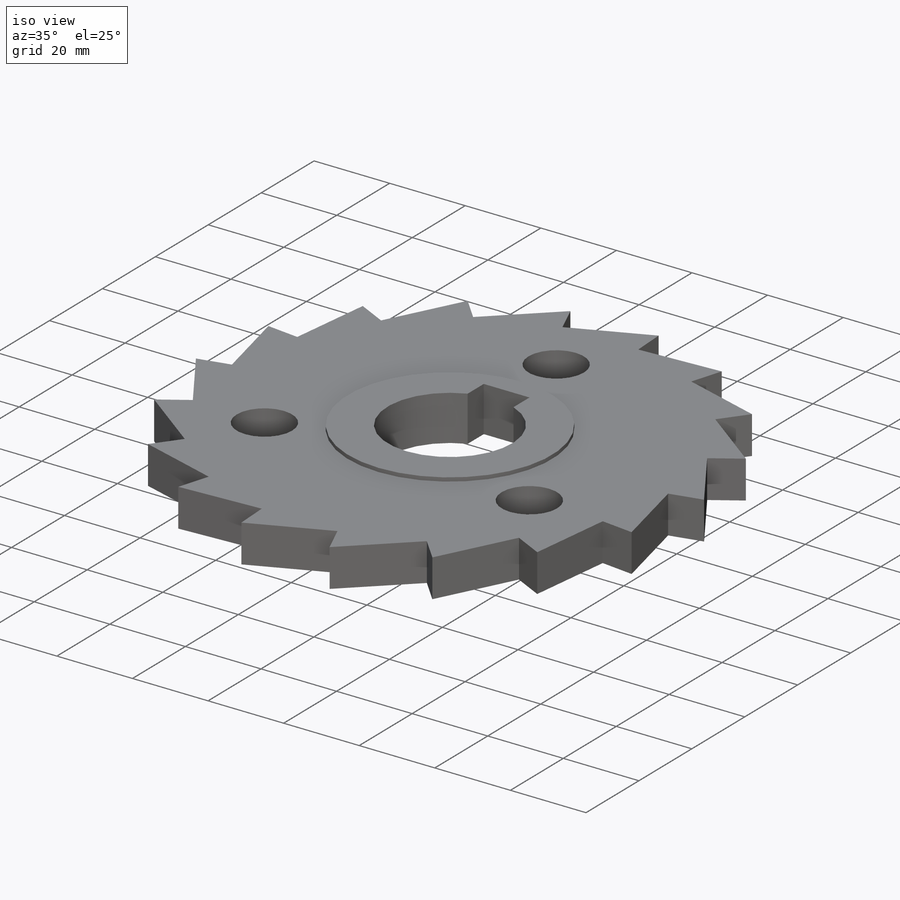
[diagram: iso view]
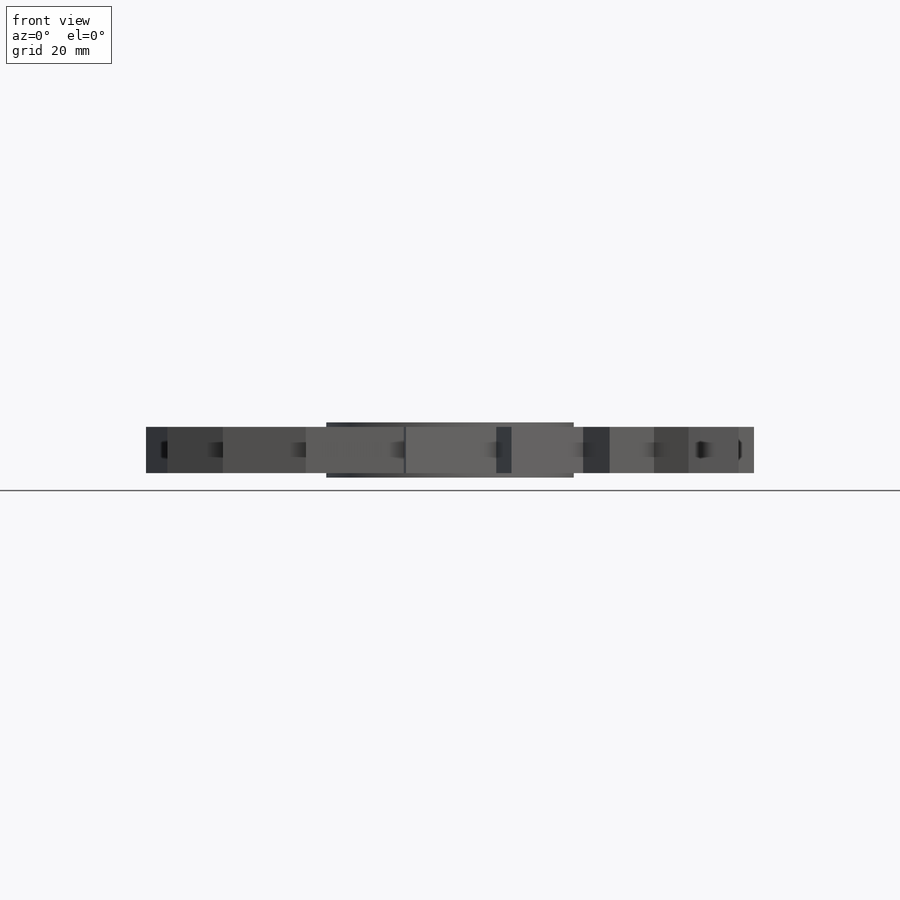
[diagram: front view]
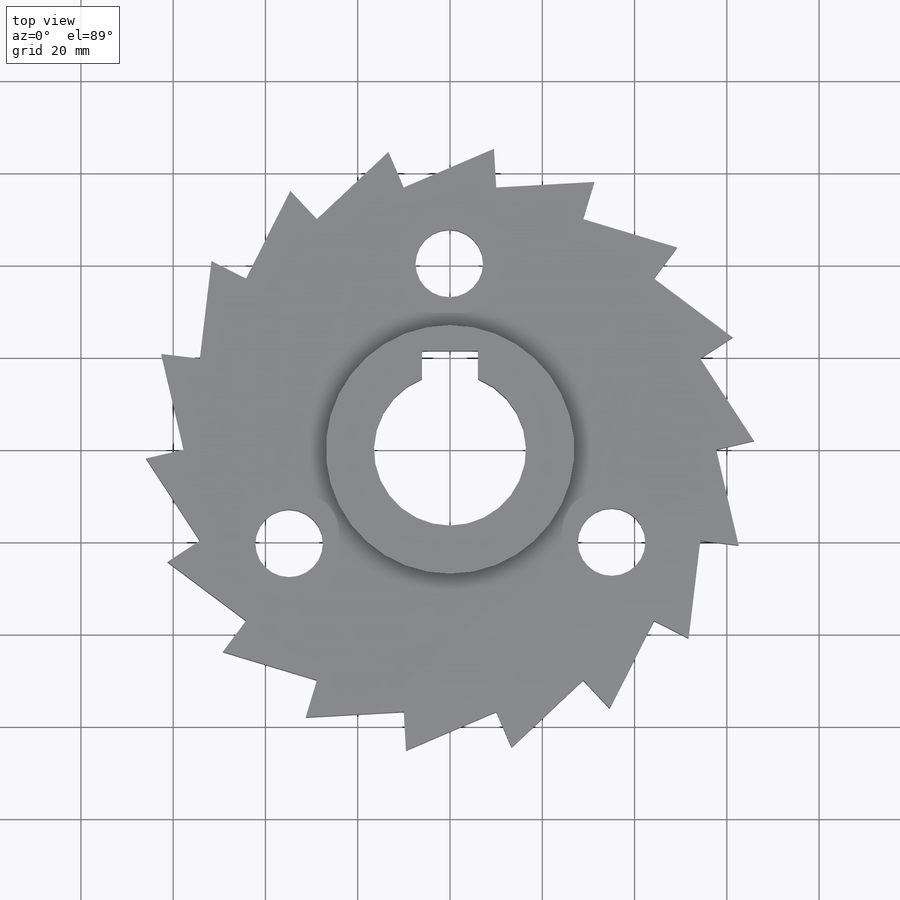
[diagram: top view]
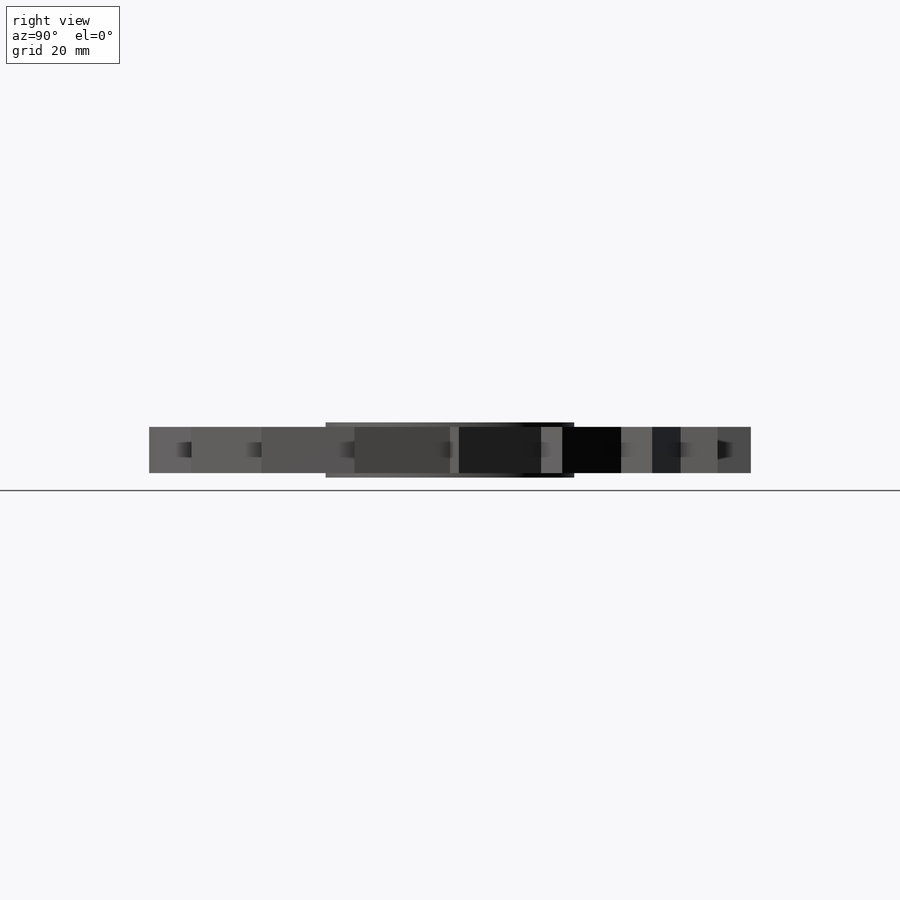
[diagram: right view]
SOLIDWORKS PART (.sldprt)
format: sldprt  version: not decoded by parser v0  size: 678,912 bytes
history: native  units: mm
features: sketch x7, cut_extrude x4, extrude x2, pattern_circular x2, move_body x2, material x1, mirror x1 + 2 further entries (+11 scaffold rows collapsed)
feature tree (32):
  scaffold x11  (default folders/planes/origin — collapsed)
  material  "Material <not specified>"
  "Core Surface Bodies"
  "Parting Surface Bodies"
  sketch  "Sketch1"
  extrude  "Boss-Extrude1"  Depth=10mm
  sketch  "Sketch2"
  cut_extrude  "Cut-Extrude1"  [1 undecoded]
  pattern_circular  "CirPattern1"  Count=18 Angle=360deg
  sketch  "Sketch3"
  cut_extrude  "Cut-Extrude2"  Depth=10mm
  sketch  "Sketch5"
  extrude  "Boss-Extrude2"  Depth=1mm
  mirror  "Mirror1"
  sketch  "Sketch6"
  cut_extrude  "Cut-Extrude3"  [1 undecoded]
  sketch  "Sketch7"
  cut_extrude  "Cut-Extrude4"  [1 undecoded]
  pattern_circular  "CirPattern2"  Count=3 Angle=360deg
  sketch  "Sketch9"  dims[D1=2.0mm D2=20.0mm D3=3.0deg]
  move_body  "Body-Move/Copy3"
  move_body  "Body-Move/Copy4"
decode coverage: 6 of 18 modeling features carry decoded parameters; 2 rows unclassified (native names shown)
note: 3 parameter values undecoded
summary: no parameter record found for 3 features
note: suppression state not decoded; provenance and decode notes live in map.json
